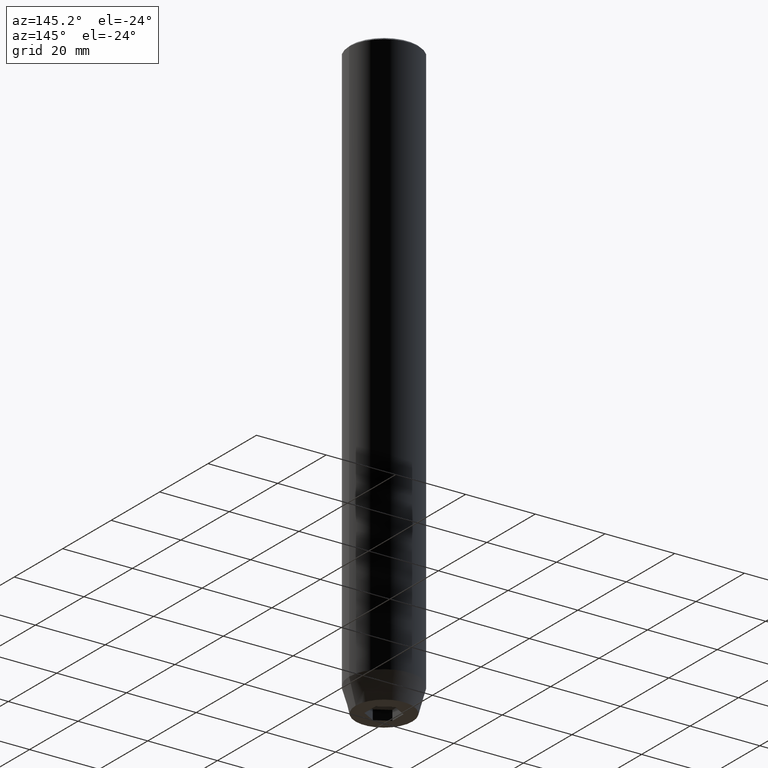
[diagram: clean part render]
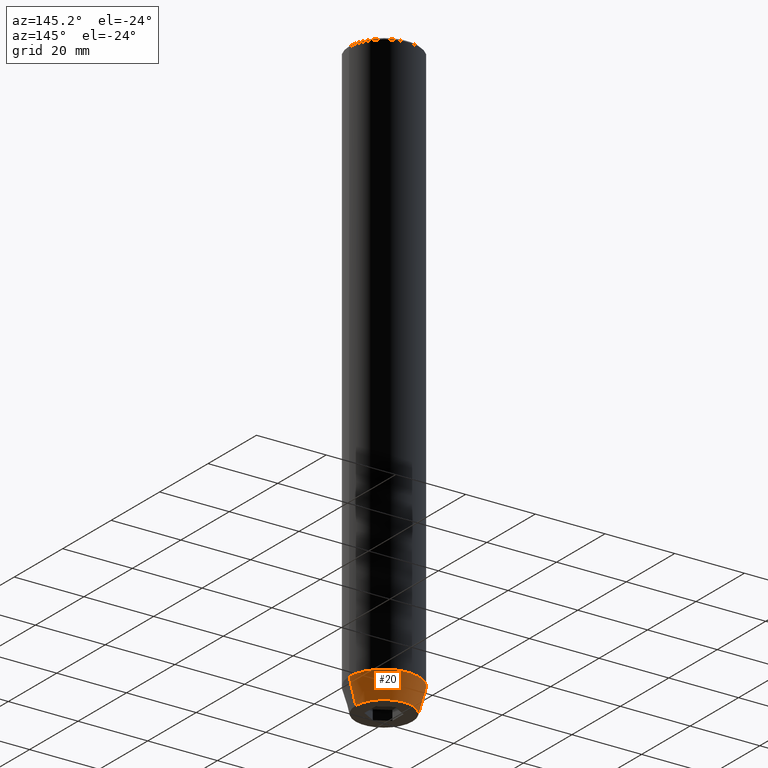
[diagram: same view with one face highlighted and labeled with its STEP entity id]
A machine part, auxiliary view. The second image highlights one B-rep face of the part: STEP entity #20.
In plain terms, the highlighted conical surface has half-angle 15 deg.
Its self-contained STEP definition (entity closure, byte-faithful):
#17 = ORIENTED_EDGE ( 'NONE', *, *, #457, .F. ) ;
#20 = ADVANCED_FACE ( 'NONE', ( #257 ), #203, .T. ) ;
#23 = CARTESIAN_POINT ( 'NONE',  ( 0.000000000000000000, 0.000000000000000000, -162.9999999999999716 ) ) ;
#26 = CIRCLE ( 'NONE', #131, 10.00000000000000000 ) ;
#45 = CARTESIAN_POINT ( 'NONE',  ( 0.000000000000000000, 0.000000000000000000, -170.0000000000000000 ) ) ;
#55 = AXIS2_PLACEMENT_3D ( 'NONE', #45, #233, #319 ) ;
#103 = ORIENTED_EDGE ( 'NONE', *, *, #214, .T. ) ;
#104 = CIRCLE ( 'NONE', #55, 8.124355652982128362 ) ;
#126 = CARTESIAN_POINT ( 'NONE',  ( 10.00000000000000000, 0.000000000000000000, -162.9999999999999716 ) ) ;
#131 = AXIS2_PLACEMENT_3D ( 'NONE', #520, #423, #386 ) ;
#132 = VECTOR ( 'NONE', #300, 1000.000000000000114 ) ;
#146 = CARTESIAN_POINT ( 'NONE',  ( -8.124355652982128362, 1.109796706851640162E-15, -170.0000000000000000 ) ) ;
#159 = EDGE_CURVE ( 'NONE', #168, #481, #180, .T. ) ;
#168 = VERTEX_POINT ( 'NONE', #146 ) ;
#180 = LINE ( 'NONE', #542, #343 ) ;
#203 = CONICAL_SURFACE ( 'NONE', #350, 10.00000000000000000, 0.2617993877991499629 ) ;
#212 = DIRECTION ( 'NONE',  ( 1.000000000000000000, 0.000000000000000000, 0.000000000000000000 ) ) ;
#214 = EDGE_CURVE ( 'NONE', #315, #168, #104, .T. ) ;
#233 = DIRECTION ( 'NONE',  ( -0.000000000000000000, -0.000000000000000000, 1.000000000000000000 ) ) ;
#246 = CARTESIAN_POINT ( 'NONE',  ( 8.124355652982128362, 0.000000000000000000, -170.0000000000000000 ) ) ;
#255 = VERTEX_POINT ( 'NONE', #417 ) ;
#257 = FACE_OUTER_BOUND ( 'NONE', #505, .T. ) ;
#300 = DIRECTION ( 'NONE',  ( 0.2588190451025212391, 0.000000000000000000, 0.9659258262890680902 ) ) ;
#307 = LINE ( 'NONE', #126, #132 ) ;
#315 = VERTEX_POINT ( 'NONE', #246 ) ;
#319 = DIRECTION ( 'NONE',  ( 1.000000000000000000, 0.000000000000000000, 0.000000000000000000 ) ) ;
#329 = ORIENTED_EDGE ( 'NONE', *, *, #159, .T. ) ;
#343 = VECTOR ( 'NONE', #465, 1000.000000000000114 ) ;
#348 = CARTESIAN_POINT ( 'NONE',  ( -10.00000000000000000, 1.224646799147353256E-15, -162.9999999999999716 ) ) ;
#350 = AXIS2_PLACEMENT_3D ( 'NONE', #23, #381, #212 ) ;
#381 = DIRECTION ( 'NONE',  ( -0.000000000000000000, -0.000000000000000000, 1.000000000000000000 ) ) ;
#386 = DIRECTION ( 'NONE',  ( 1.000000000000000000, 0.000000000000000000, 0.000000000000000000 ) ) ;
#400 = EDGE_CURVE ( 'NONE', #255, #481, #26, .T. ) ;
#417 = CARTESIAN_POINT ( 'NONE',  ( 10.00000000000000000, 0.000000000000000000, -162.9999999999999716 ) ) ;
#423 = DIRECTION ( 'NONE',  ( -0.000000000000000000, -0.000000000000000000, 1.000000000000000000 ) ) ;
#457 = EDGE_CURVE ( 'NONE', #315, #255, #307, .T. ) ;
#465 = DIRECTION ( 'NONE',  ( -0.2588190451025212391, 3.169619151431771721E-17, 0.9659258262890680902 ) ) ;
#475 = ORIENTED_EDGE ( 'NONE', *, *, #400, .F. ) ;
#481 = VERTEX_POINT ( 'NONE', #348 ) ;
#505 = EDGE_LOOP ( 'NONE', ( #103, #329, #475, #17 ) ) ;
#520 = CARTESIAN_POINT ( 'NONE',  ( 0.000000000000000000, 0.000000000000000000, -162.9999999999999716 ) ) ;
#542 = CARTESIAN_POINT ( 'NONE',  ( -10.00000000000000000, 1.224646799147353256E-15, -162.9999999999999716 ) ) ;